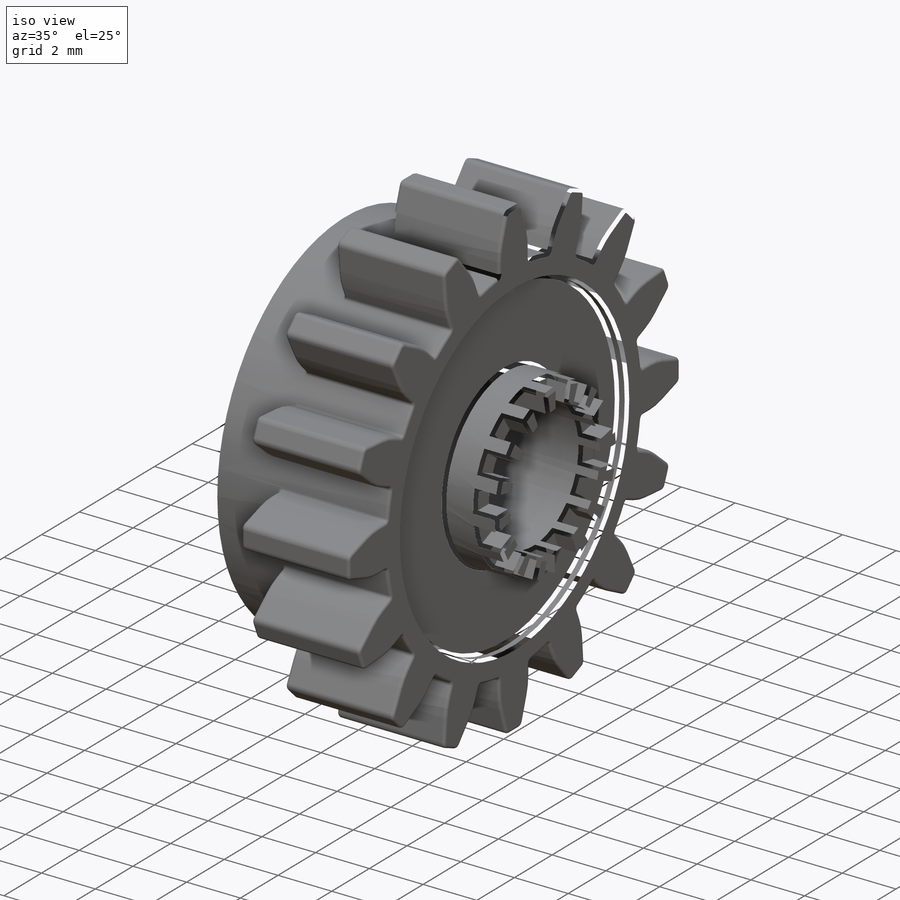
[diagram: iso view]
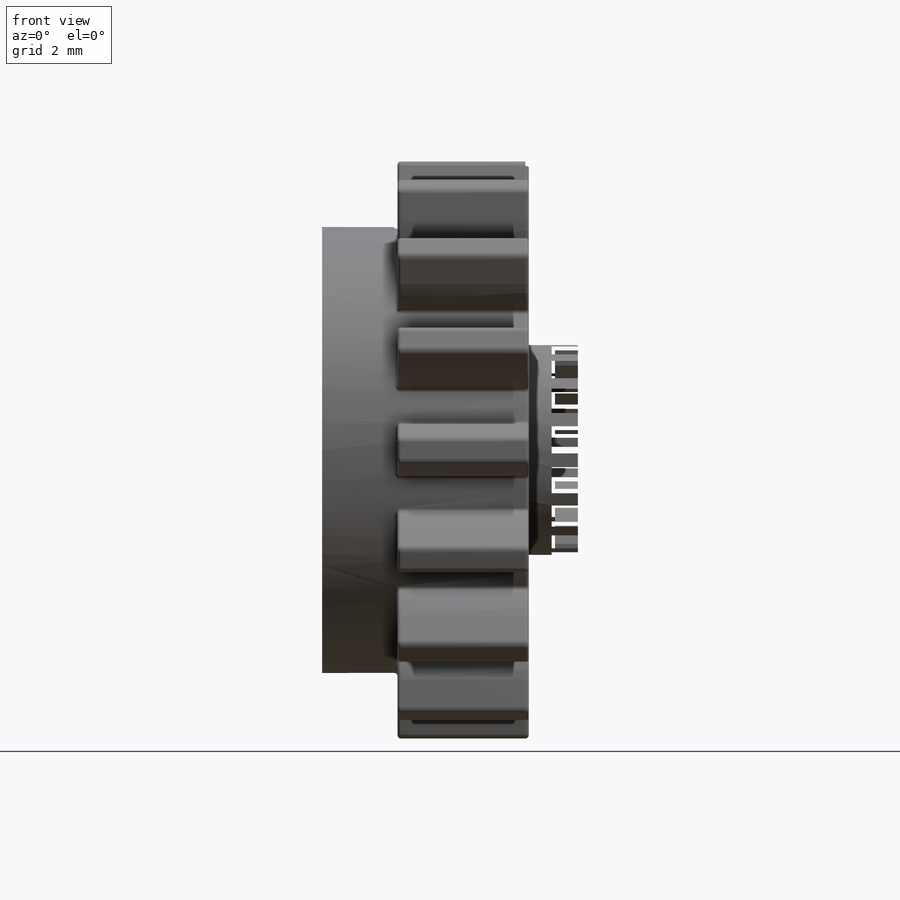
[diagram: front view]
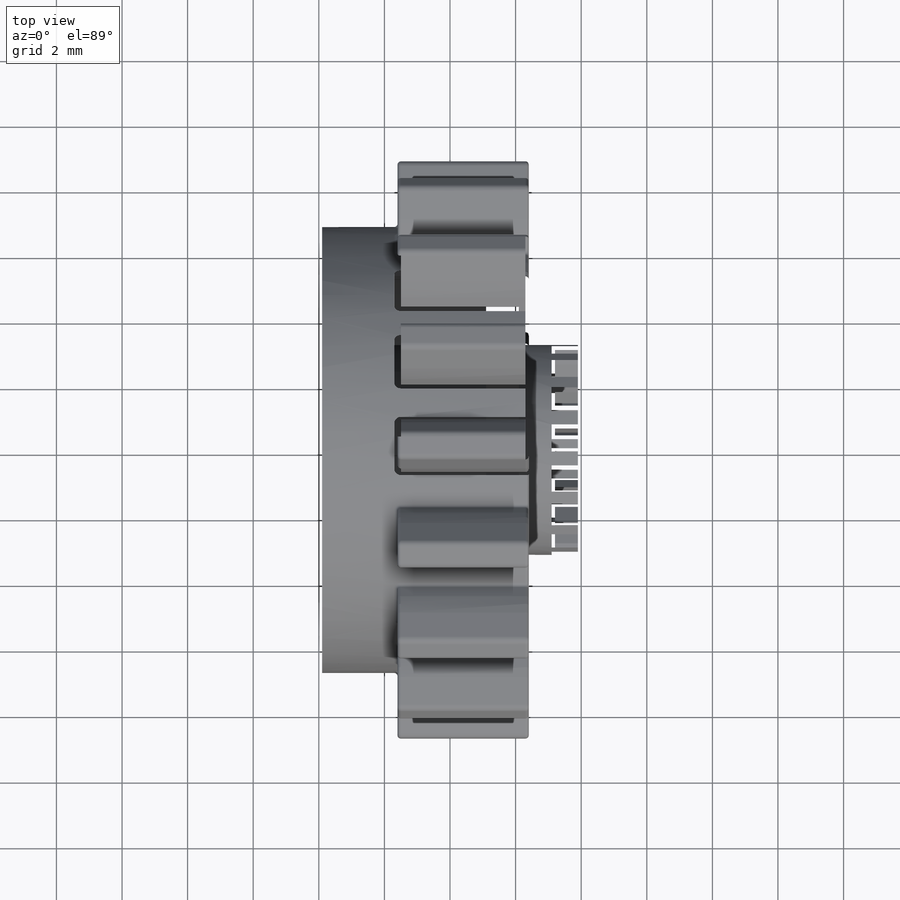
[diagram: top view]
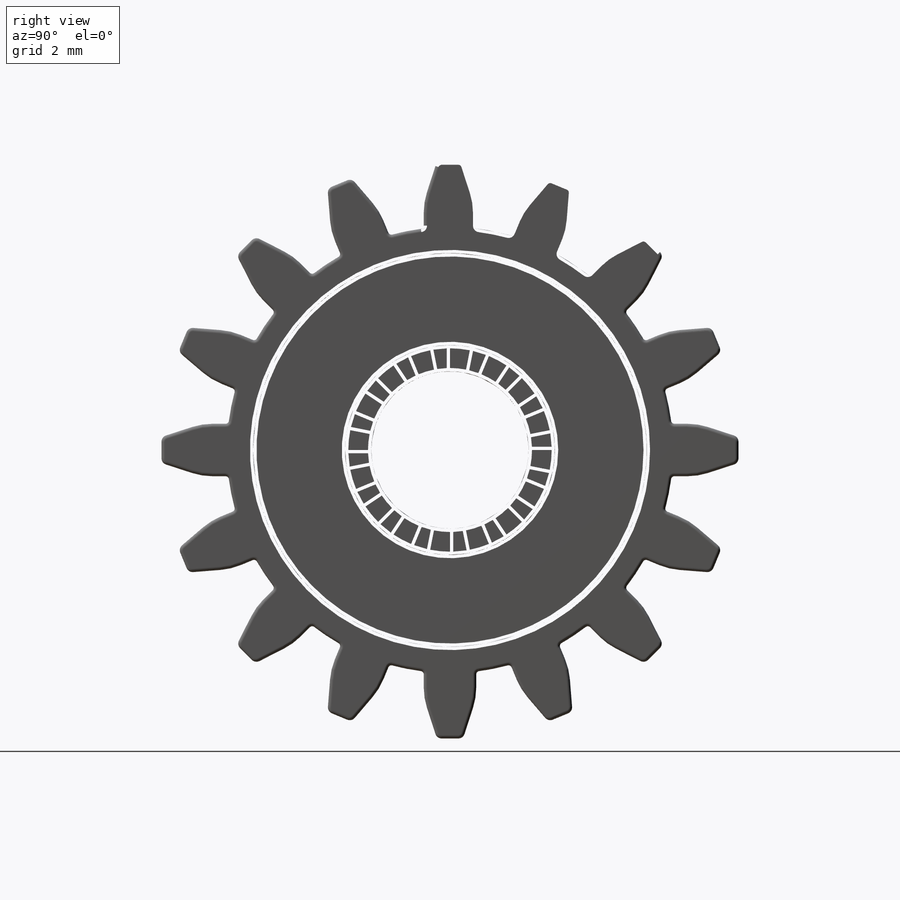
[diagram: right view]
SOLIDWORKS PART (.sldprt)
format: sldprt  version: not decoded by parser v0  size: 2,422,272 bytes
history: native  units: mm
features: sketch x10, extrude x6, cut_extrude x4, fillet x4, plane x3, pattern_circular x3, material x1 (+10 scaffold rows collapsed)
feature tree (41):
  scaffold x10  (default folders/planes/origin — collapsed)
  material  "PET"
  plane  "Alzado"
  plane  "Planta"
  plane  "Vista lateral"
  sketch  "Croquis1"  dims[D1=13.6mm D2=3.2mm D3=3.4mm]
  extrude  "Saliente-Extruir1"  Depth=4.8mm
  sketch  "Croquis2"  dims[D1=12.0mm]
  cut_extrude  "Cortar-Extruir1"  Depth=0.4mm
  sketch  "Croquis3"  dims[D1=4.8mm]
  cut_extrude  "Cortar-Extruir2"  Depth=10mm
  sketch  "Tooth Profile"  dims[c1.D1=6.8mm c1.D3=15.2mm c1.D4=17.6mm c2.D1=0.4mm c2.D2=0.8mm]
  extrude  "Tooth"  Depth=4mm
  fillet  "Redondeo1"  Radius=2mm
  fillet  "Redondeo2"  Radius=0.2mm
  pattern_circular  "MatrizC1"  Count=16 Angle=360deg
  sketch  "Croquis4"  dims[D1=12.0mm]
  cut_extrude  "Cortar-Extruir3"  Depth=3.6mm
  sketch  "Croquis5"  dims[D1=6.4mm D2=10.4mm]
  extrude  "Saliente-Extruir2"  Depth=5.2mm
  sketch  "Croquis6"  dims[D1=4.8mm D2=6.4mm]
  extrude  "Saliente-Extruir3"  Depth=5.2mm
  sketch  "Croquis7"  dims[D1=0.8mm D2=0.4mm D3=0.8mm]
  extrude  "Saliente-Extruir4"  Depth=5.2mm
  fillet  "Redondeo3"  Radius=0.2mm
  pattern_circular  "MatrizC2"  Count=4 Angle=360deg
  sketch  "Croquis8"  dims[D1=4.8mm D2=6.4mm]
  extrude  "Saliente-Extruir5"  Depth=2mm
  sketch  "Croquis9"  dims[D1=32.0]
  cut_extrude  "Cortar-Extruir4"  Depth=0.8mm
  pattern_circular  "MatrizC3"  Count=16 Angle=360deg
  fillet  "Redondeo4"  Radius=0.1mm
decode coverage: 27 of 27 modeling features carry decoded parameters
note: suppression state not decoded; provenance and decode notes live in map.json
